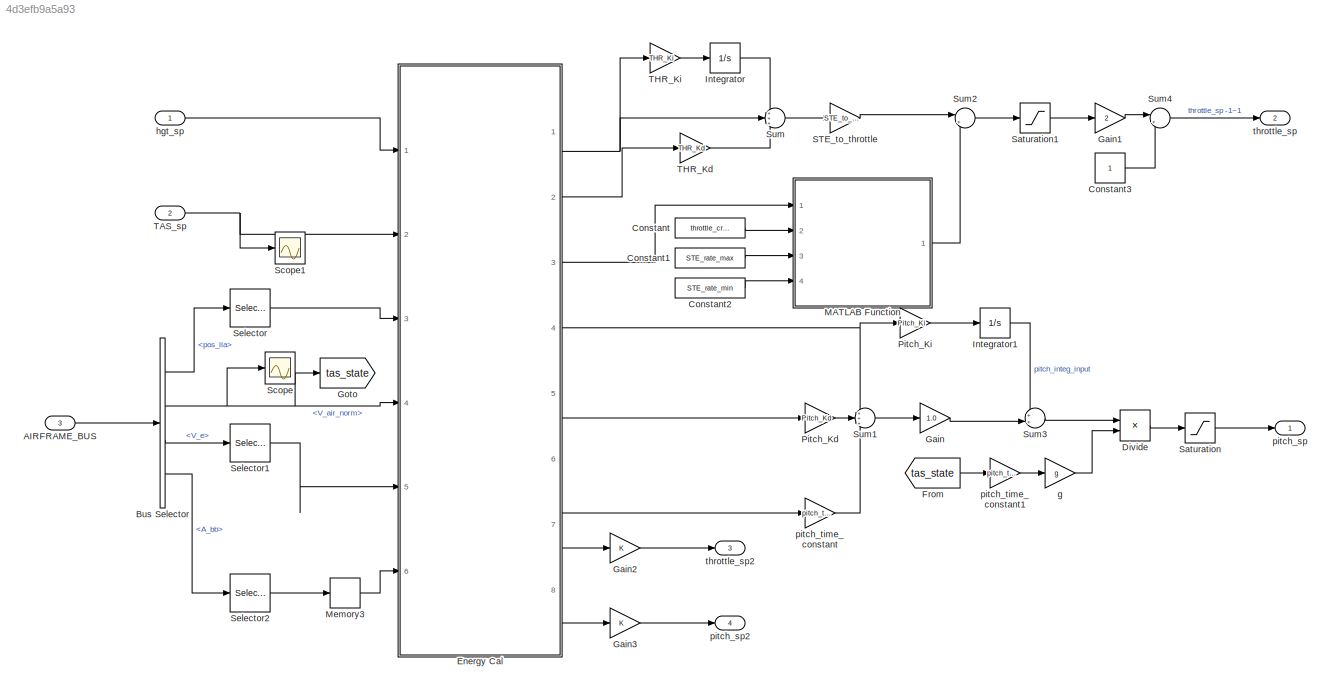
MODEL slx_4d3efb9a5a93
KIND model
CONFIG AbsTol = auto
CONFIG EnableMultiTasking = off
CONFIG FixedStep = auto
CONFIG MaxStep = auto
CONFIG MinStep = auto
CONFIG RelTol = 1e-3
CONFIG SampleTimeConstraint = Unconstrained
CONFIG Solver = FixedStepAuto
CONFIG SolverName = FixedStepAuto
CONFIG StartTime = 0.0
CONFIG StopTime = 10.0
BLOCK [Inport] AIRFRAME_BUS
  IconDisplay = Port number
  OutDataTypeStr = Bus: airframe
  Port = 3
BLOCK [BusSelector] Bus Selector
  OutputAsBus = off
  OutputSignals = pos_lla,V_air_norm,V_e,A_bb
  Ports = [1, 4]
BLOCK [Constant] Constant
  Value = throttle_cruise
BLOCK [Constant] Constant1
  Value = STE_rate_max
BLOCK [Constant] Constant2
  Value = STE_rate_min
BLOCK [Constant] Constant3
BLOCK [Product] Divide
  InputSameDT = off
  Inputs = */
  OutDataTypeStr = Inherit: Inherit via internal rule
  Ports = [2, 1]
  RndMeth = Floor
  SaturateOnIntegerOverflow = off
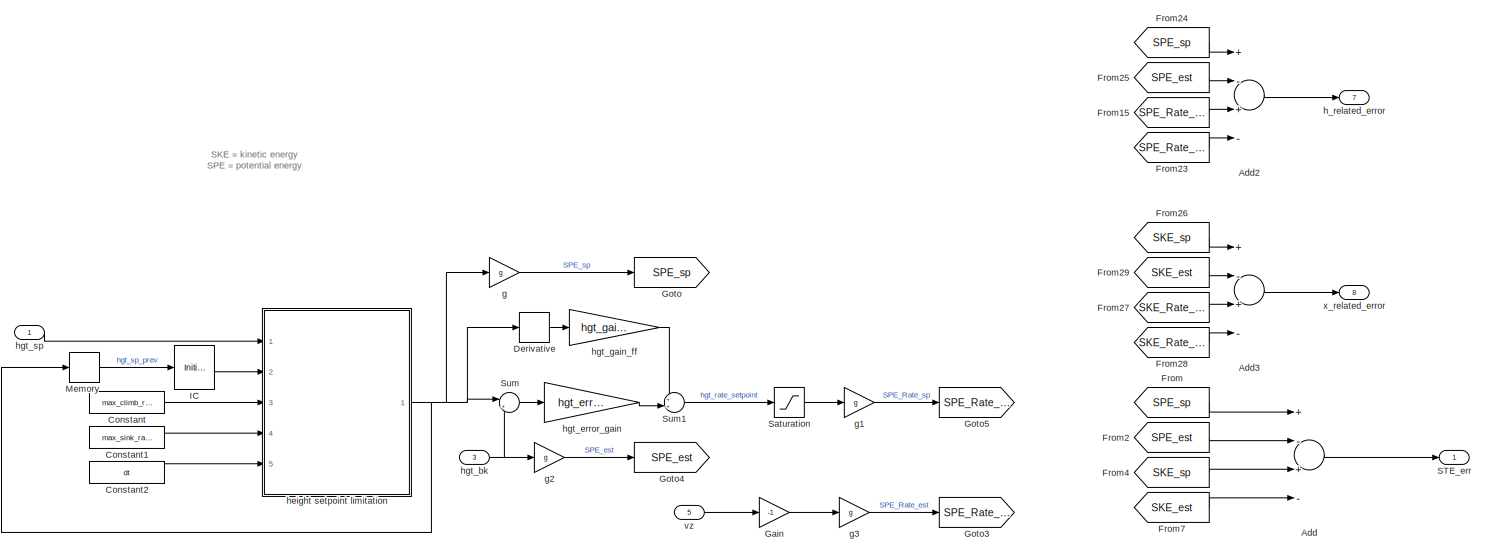
[diagram: Energy Cal - part 1/3, full width, top band]
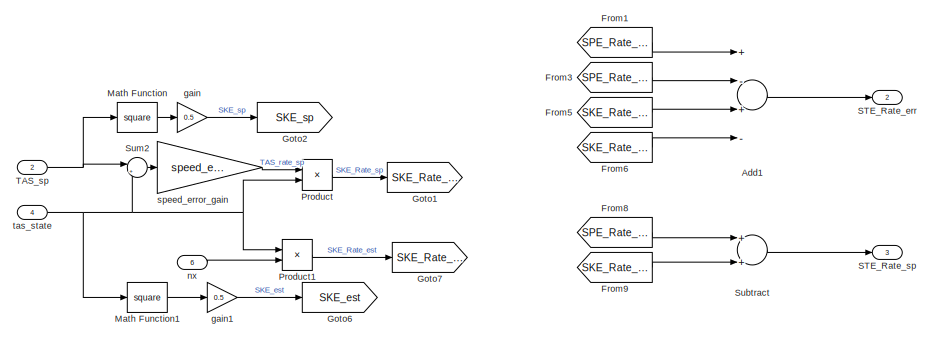
[diagram: Energy Cal - part 2/3, central region]
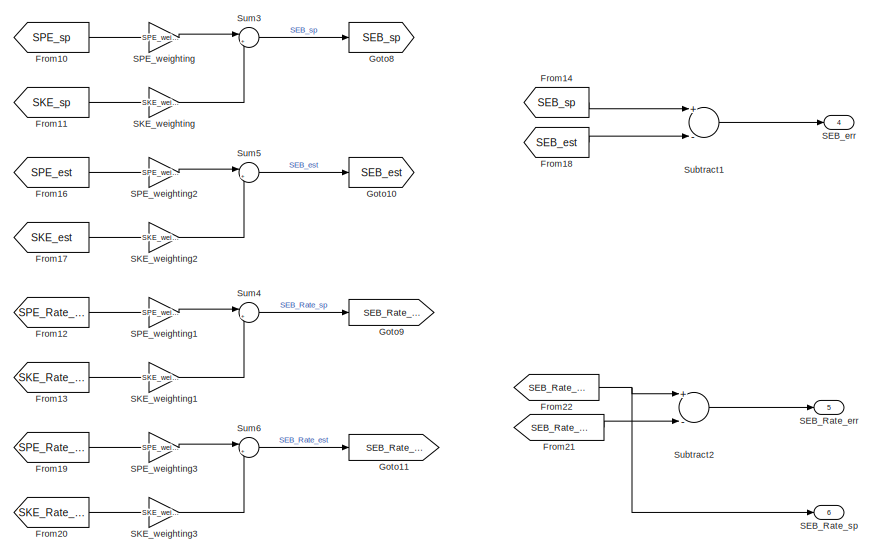
[diagram: Energy Cal - part 3/3, bottom right region]
BLOCK [SubSystem] Energy Cal
  Ports = [6, 8]
  RequestExecContextInheritance = off
  Variant = off
BLOCK [Sum] Energy Cal/Add
  InputSameDT = off
  Inputs = +-+-
  OutDataTypeStr = Inherit: Inherit via internal rule
  Ports = [4, 1]
  SaturateOnIntegerOverflow = off
BLOCK [Sum] Energy Cal/Add1
  InputSameDT = off
  Inputs = +-+-
  OutDataTypeStr = Inherit: Inherit via internal rule
  Ports = [4, 1]
  SaturateOnIntegerOverflow = off
BLOCK [Sum] Energy Cal/Add2
  InputSameDT = off
  Inputs = +-+-
  OutDataTypeStr = Inherit: Inherit via internal rule
  Ports = [4, 1]
  SaturateOnIntegerOverflow = off
BLOCK [Sum] Energy Cal/Add3
  InputSameDT = off
  Inputs = +-+-
  OutDataTypeStr = Inherit: Inherit via internal rule
  Ports = [4, 1]
  SaturateOnIntegerOverflow = off
BLOCK [Constant] Energy Cal/Constant
  Value = max_climb_rate
BLOCK [Constant] Energy Cal/Constant1
  Value = max_sink_rate
BLOCK [Constant] Energy Cal/Constant2
  Value = dt
BLOCK [Derivative] Energy Cal/Derivative
BLOCK [From] Energy Cal/From
  GotoTag = SPE_sp
BLOCK [From] Energy Cal/From1
  GotoTag = SPE_Rate_sp
BLOCK [From] Energy Cal/From10
  GotoTag = SPE_sp
BLOCK [From] Energy Cal/From11
  GotoTag = SKE_sp
BLOCK [From] Energy Cal/From12
  GotoTag = SPE_Rate_sp
BLOCK [From] Energy Cal/From13
  GotoTag = SKE_Rate_sp
BLOCK [From] Energy Cal/From14
  GotoTag = SEB_sp
BLOCK [From] Energy Cal/From15
  GotoTag = SPE_Rate_sp
BLOCK [From] Energy Cal/From16
  GotoTag = SPE_est
BLOCK [From] Energy Cal/From17
  GotoTag = SKE_est
BLOCK [From] Energy Cal/From18
  GotoTag = SEB_est
BLOCK [From] Energy Cal/From19
  GotoTag = SPE_Rate_est
BLOCK [From] Energy Cal/From2
  GotoTag = SPE_est
BLOCK [From] Energy Cal/From20
  GotoTag = SKE_Rate_est
BLOCK [From] Energy Cal/From21
  GotoTag = SEB_Rate_est
BLOCK [From] Energy Cal/From22
  GotoTag = SEB_Rate_sp
BLOCK [From] Energy Cal/From23
  GotoTag = SPE_Rate_est
BLOCK [From] Energy Cal/From24
  GotoTag = SPE_sp
BLOCK [From] Energy Cal/From25
  GotoTag = SPE_est
BLOCK [From] Energy Cal/From26
  GotoTag = SKE_sp
BLOCK [From] Energy Cal/From27
  GotoTag = SKE_Rate_sp
BLOCK [From] Energy Cal/From28
  GotoTag = SKE_Rate_est
BLOCK [From] Energy Cal/From29
  GotoTag = SKE_est
BLOCK [From] Energy Cal/From3
  GotoTag = SPE_Rate_est
BLOCK [From] Energy Cal/From4
  GotoTag = SKE_sp
BLOCK [From] Energy Cal/From5
  GotoTag = SKE_Rate_sp
BLOCK [From] Energy Cal/From6
  GotoTag = SKE_Rate_est
BLOCK [From] Energy Cal/From7
  GotoTag = SKE_est
BLOCK [From] Energy Cal/From8
  GotoTag = SPE_Rate_sp
BLOCK [From] Energy Cal/From9
  GotoTag = SKE_Rate_sp
BLOCK [Gain] Energy Cal/Gain
  Gain = -1
  OutDataTypeStr = Inherit: Inherit via internal rule
  ParamDataTypeStr = Inherit: Inherit via internal rule
  SaturateOnIntegerOverflow = off
BLOCK [Goto] Energy Cal/Goto
  GotoTag = SPE_sp
BLOCK [Goto] Energy Cal/Goto1
  GotoTag = SKE_Rate_sp
BLOCK [Goto] Energy Cal/Goto10
  GotoTag = SEB_est
BLOCK [Goto] Energy Cal/Goto11
  GotoTag = SEB_Rate_est
BLOCK [Goto] Energy Cal/Goto2
  GotoTag = SKE_sp
BLOCK [Goto] Energy Cal/Goto3
  GotoTag = SPE_Rate_est
BLOCK [Goto] Energy Cal/Goto4
  GotoTag = SPE_est
BLOCK [Goto] Energy Cal/Goto5
  GotoTag = SPE_Rate_sp
BLOCK [Goto] Energy Cal/Goto6
  GotoTag = SKE_est
BLOCK [Goto] Energy Cal/Goto7
  GotoTag = SKE_Rate_est
BLOCK [Goto] Energy Cal/Goto8
  GotoTag = SEB_sp
BLOCK [Goto] Energy Cal/Goto9
  GotoTag = SEB_Rate_sp
BLOCK [InitialCondition] Energy Cal/IC
  Value = -z0
BLOCK [Math] Energy Cal/Math Function
  Operator = square
  Ports = [1, 1]
BLOCK [Math] Energy Cal/Math Function1
  Operator = square
  Ports = [1, 1]
BLOCK [Memory] Energy Cal/Memory
BLOCK [Product] Energy Cal/Product
  InputSameDT = off
  OutDataTypeStr = Inherit: Inherit via internal rule
  Ports = [2, 1]
  RndMeth = Floor
  SaturateOnIntegerOverflow = off
BLOCK [Product] Energy Cal/Product1
  InputSameDT = off
  OutDataTypeStr = Inherit: Inherit via internal rule
  Ports = [2, 1]
  RndMeth = Floor
  SaturateOnIntegerOverflow = off
BLOCK [Outport] Energy Cal/SEB_Rate_err
  IconDisplay = Port number
  Port = 5
BLOCK [Outport] Energy Cal/SEB_Rate_sp
  IconDisplay = Port number
  Port = 6
BLOCK [Outport] Energy Cal/SEB_err
  IconDisplay = Port number
  Port = 4
BLOCK [Gain] Energy Cal/SKE_weighting
  Gain = SKE_weighting
  OutDataTypeStr = Inherit: Inherit via internal rule
  ParamDataTypeStr = Inherit: Inherit via internal rule
  SaturateOnIntegerOverflow = off
BLOCK [Gain] Energy Cal/SKE_weighting1
  Gain = SKE_weighting
  OutDataTypeStr = Inherit: Inherit via internal rule
  ParamDataTypeStr = Inherit: Inherit via internal rule
  SaturateOnIntegerOverflow = off
BLOCK [Gain] Energy Cal/SKE_weighting2
  Gain = SKE_weighting
  OutDataTypeStr = Inherit: Inherit via internal rule
  ParamDataTypeStr = Inherit: Inherit via internal rule
  SaturateOnIntegerOverflow = off
BLOCK [Gain] Energy Cal/SKE_weighting3
  Gain = SKE_weighting
  OutDataTypeStr = Inherit: Inherit via internal rule
  ParamDataTypeStr = Inherit: Inherit via internal rule
  SaturateOnIntegerOverflow = off
BLOCK [Gain] Energy Cal/SPE_weighting
  Gain = SPE_weighting
  OutDataTypeStr = Inherit: Inherit via internal rule
  ParamDataTypeStr = Inherit: Inherit via internal rule
  SaturateOnIntegerOverflow = off
BLOCK [Gain] Energy Cal/SPE_weighting1
  Gain = SPE_weighting
  OutDataTypeStr = Inherit: Inherit via internal rule
  ParamDataTypeStr = Inherit: Inherit via internal rule
  SaturateOnIntegerOverflow = off
BLOCK [Gain] Energy Cal/SPE_weighting2
  Gain = SPE_weighting
  OutDataTypeStr = Inherit: Inherit via internal rule
  ParamDataTypeStr = Inherit: Inherit via internal rule
  SaturateOnIntegerOverflow = off
BLOCK [Gain] Energy Cal/SPE_weighting3
  Gain = SPE_weighting
  OutDataTypeStr = Inherit: Inherit via internal rule
  ParamDataTypeStr = Inherit: Inherit via internal rule
  SaturateOnIntegerOverflow = off
BLOCK [Outport] Energy Cal/STE_Rate_err
  IconDisplay = Port number
  Port = 2
BLOCK [Outport] Energy Cal/STE_Rate_sp
  IconDisplay = Port number
  Port = 3
BLOCK [Outport] Energy Cal/STE_err
  IconDisplay = Port number
BLOCK [Saturate] Energy Cal/Saturation
  InputPortMap = u0
  LowerLimit = -min_sink_rate
  Ports = [1, 1]
  UpperLimit = max_climb_rate
BLOCK [Sum] Energy Cal/Subtract
  InputSameDT = off
  OutDataTypeStr = Inherit: Inherit via internal rule
  Ports = [2, 1]
  SaturateOnIntegerOverflow = off
BLOCK [Sum] Energy Cal/Subtract1
  InputSameDT = off
  Inputs = +-
  OutDataTypeStr = Inherit: Inherit via internal rule
  Ports = [2, 1]
  SaturateOnIntegerOverflow = off
BLOCK [Sum] Energy Cal/Subtract2
  InputSameDT = off
  Inputs = +-
  OutDataTypeStr = Inherit: Inherit via internal rule
  Ports = [2, 1]
  SaturateOnIntegerOverflow = off
BLOCK [Sum] Energy Cal/Sum
  IconShape = round
  InputSameDT = off
  Inputs = |+-
  OutDataTypeStr = Inherit: Inherit via internal rule
  Ports = [2, 1]
  SaturateOnIntegerOverflow = off
BLOCK [Sum] Energy Cal/Sum1
  IconShape = round
  InputSameDT = off
  Inputs = ++|
  OutDataTypeStr = Inherit: Inherit via internal rule
  Ports = [2, 1]
  SaturateOnIntegerOverflow = off
BLOCK [Sum] Energy Cal/Sum2
  IconShape = round
  InputSameDT = off
  Inputs = |+-
  OutDataTypeStr = Inherit: Inherit via internal rule
  Ports = [2, 1]
  SaturateOnIntegerOverflow = off
BLOCK [Sum] Energy Cal/Sum3
  IconShape = round
  InputSameDT = off
  Inputs = |+-
  OutDataTypeStr = Inherit: Inherit via internal rule
  Ports = [2, 1]
  SaturateOnIntegerOverflow = off
BLOCK [Sum] Energy Cal/Sum4
  IconShape = round
  InputSameDT = off
  Inputs = |+-
  OutDataTypeStr = Inherit: Inherit via internal rule
  Ports = [2, 1]
  SaturateOnIntegerOverflow = off
BLOCK [Sum] Energy Cal/Sum5
  IconShape = round
  InputSameDT = off
  Inputs = |+-
  OutDataTypeStr = Inherit: Inherit via internal rule
  Ports = [2, 1]
  SaturateOnIntegerOverflow = off
BLOCK [Sum] Energy Cal/Sum6
  IconShape = round
  InputSameDT = off
  Inputs = |+-
  OutDataTypeStr = Inherit: Inherit via internal rule
  Ports = [2, 1]
  SaturateOnIntegerOverflow = off
BLOCK [Inport] Energy Cal/TAS_sp
  IconDisplay = Port number
  Port = 2
BLOCK [Gain] Energy Cal/g
  Gain = g
  OutDataTypeStr = Inherit: Inherit via internal rule
  ParamDataTypeStr = Inherit: Inherit via internal rule
  SaturateOnIntegerOverflow = off
BLOCK [Gain] Energy Cal/g1
  Gain = g
  OutDataTypeStr = Inherit: Inherit via internal rule
  ParamDataTypeStr = Inherit: Inherit via internal rule
  SaturateOnIntegerOverflow = off
BLOCK [Gain] Energy Cal/g2
  Gain = g
  OutDataTypeStr = Inherit: Inherit via internal rule
  ParamDataTypeStr = Inherit: Inherit via internal rule
  SaturateOnIntegerOverflow = off
BLOCK [Gain] Energy Cal/g3
  Gain = g
  OutDataTypeStr = Inherit: Inherit via internal rule
  ParamDataTypeStr = Inherit: Inherit via internal rule
  SaturateOnIntegerOverflow = off
BLOCK [Gain] Energy Cal/gain
  Gain = 0.5
  OutDataTypeStr = Inherit: Inherit via internal rule
  ParamDataTypeStr = Inherit: Inherit via internal rule
  SaturateOnIntegerOverflow = off
BLOCK [Gain] Energy Cal/gain1
  Gain = 0.5
  OutDataTypeStr = Inherit: Inherit via internal rule
  ParamDataTypeStr = Inherit: Inherit via internal rule
  SaturateOnIntegerOverflow = off
BLOCK [Outport] Energy Cal/h_related_error
  IconDisplay = Port number
  Port = 7
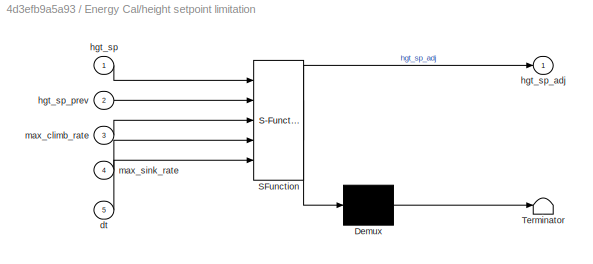
BLOCK [SubSystem] Energy Cal/height setpoint limitation
  ErrorFcn = Stateflow.Translate.translate
  PermitHierarchicalResolution = ExplicitOnly
  Ports = [5, 1]
  RequestExecContextInheritance = off
  SFBlockType = MATLAB Function
  TreatAsAtomicUnit = on
  Variant = off
BLOCK [Demux] Energy Cal/height setpoint limitation/ Demux 
  Outputs = 1
  Ports = [1, 1]
BLOCK [S-Function] Energy Cal/height setpoint limitation/ SFunction 
  EnableBusSupport = on
  FunctionName = sf_sfun
  PortCounts = [5 2]
  Ports = [5, 2]
  SFcnIsStateOwnerBlock = off
  SFunctionDeploymentMode = off
  Tag = Stateflow S-Function NewDesignTECS 27
BLOCK [Terminator] Energy Cal/height setpoint limitation/ Terminator 
BLOCK [Inport] Energy Cal/height setpoint limitation/dt
  IconDisplay = Port number
  Port = 5
BLOCK [Inport] Energy Cal/height setpoint limitation/hgt_sp
  IconDisplay = Port number
BLOCK [Outport] Energy Cal/height setpoint limitation/hgt_sp_adj
  IconDisplay = Port number
BLOCK [Inport] Energy Cal/height setpoint limitation/hgt_sp_prev
  IconDisplay = Port number
  Port = 2
BLOCK [Inport] Energy Cal/height setpoint limitation/max_climb_rate
  IconDisplay = Port number
  Port = 3
BLOCK [Inport] Energy Cal/height setpoint limitation/max_sink_rate
  IconDisplay = Port number
  Port = 4
BLOCK [Inport] Energy Cal/hgt_bk
  IconDisplay = Port number
  Port = 3
BLOCK [Gain] Energy Cal/hgt_error_gain
  Gain = hgt_error_gain
  OutDataTypeStr = Inherit: Inherit via internal rule
  ParamDataTypeStr = Inherit: Inherit via internal rule
  SaturateOnIntegerOverflow = off
BLOCK [Gain] Energy Cal/hgt_gain_ff
  Gain = hgt_gain_ff
  OutDataTypeStr = Inherit: Inherit via internal rule
  ParamDataTypeStr = Inherit: Inherit via internal rule
  SaturateOnIntegerOverflow = off
BLOCK [Inport] Energy Cal/hgt_sp
  IconDisplay = Port number
BLOCK [Inport] Energy Cal/nx
  IconDisplay = Port number
  Port = 6
BLOCK [Gain] Energy Cal/speed_error_gain
  Gain = speed_error_gain
  OutDataTypeStr = Inherit: Inherit via internal rule
  ParamDataTypeStr = Inherit: Inherit via internal rule
  SaturateOnIntegerOverflow = off
BLOCK [Inport] Energy Cal/tas_state
  IconDisplay = Port number
  Port = 4
BLOCK [Inport] Energy Cal/vz
  IconDisplay = Port number
  Port = 5
BLOCK [Outport] Energy Cal/x_related_error
  IconDisplay = Port number
  Port = 8
BLOCK [From] From
  GotoTag = tas_state
BLOCK [Gain] Gain
  Gain = 1.0
  OutDataTypeStr = Inherit: Inherit via internal rule
  ParamDataTypeStr = Inherit: Inherit via internal rule
  SaturateOnIntegerOverflow = off
BLOCK [Gain] Gain1
  Gain = 2
  OutDataTypeStr = Inherit: Inherit via internal rule
  ParamDataTypeStr = Inherit: Inherit via internal rule
  SaturateOnIntegerOverflow = off
BLOCK [Gain] Gain2
  OutDataTypeStr = Inherit: Inherit via internal rule
  ParamDataTypeStr = Inherit: Inherit via internal rule
  SaturateOnIntegerOverflow = off
BLOCK [Gain] Gain3
  OutDataTypeStr = Inherit: Inherit via internal rule
  ParamDataTypeStr = Inherit: Inherit via internal rule
  SaturateOnIntegerOverflow = off
BLOCK [Goto] Goto
  GotoTag = tas_state
BLOCK [Integrator] Integrator
  Ports = [1, 1]
BLOCK [Integrator] Integrator1
  Ports = [1, 1]
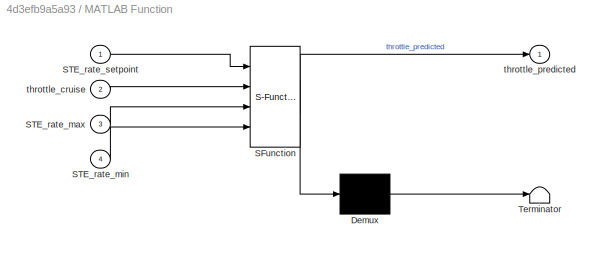
BLOCK [SubSystem] MATLAB Function
  ErrorFcn = Stateflow.Translate.translate
  PermitHierarchicalResolution = ExplicitOnly
  Ports = [4, 1]
  RequestExecContextInheritance = off
  SFBlockType = MATLAB Function
  TreatAsAtomicUnit = on
  Variant = off
BLOCK [Demux] MATLAB Function/ Demux 
  Outputs = 1
  Ports = [1, 1]
BLOCK [S-Function] MATLAB Function/ SFunction 
  EnableBusSupport = on
  FunctionName = sf_sfun
  PortCounts = [4 2]
  Ports = [4, 2]
  SFcnIsStateOwnerBlock = off
  SFunctionDeploymentMode = off
  Tag = Stateflow S-Function NewDesignTECS 28
BLOCK [Terminator] MATLAB Function/ Terminator 
BLOCK [Inport] MATLAB Function/STE_rate_max
  IconDisplay = Port number
  Port = 3
BLOCK [Inport] MATLAB Function/STE_rate_min
  IconDisplay = Port number
  Port = 4
BLOCK [Inport] MATLAB Function/STE_rate_setpoint
  IconDisplay = Port number
BLOCK [Inport] MATLAB Function/throttle_cruise
  IconDisplay = Port number
  Port = 2
BLOCK [Outport] MATLAB Function/throttle_predicted
  IconDisplay = Port number
BLOCK [Memory] Memory3
BLOCK [Gain] Pitch_Kd
  Gain = Pitch_Kd
  OutDataTypeStr = Inherit: Inherit via internal rule
  ParamDataTypeStr = Inherit: Inherit via internal rule
  SaturateOnIntegerOverflow = off
BLOCK [Gain] Pitch_Ki
  Gain = Pitch_Ki
  OutDataTypeStr = Inherit: Inherit via internal rule
  ParamDataTypeStr = Inherit: Inherit via internal rule
  SaturateOnIntegerOverflow = off
BLOCK [Gain] STE_to_throttle
  Gain = STE_to_throttle
  OutDataTypeStr = Inherit: Inherit via internal rule
  ParamDataTypeStr = Inherit: Inherit via internal rule
  SaturateOnIntegerOverflow = off
BLOCK [Saturate] Saturation
  InputPortMap = u0
  LowerLimit = -pitch_sp_limit
  Ports = [1, 1]
  UpperLimit = pitch_sp_limit
BLOCK [Saturate] Saturation1
  InputPortMap = u0
  LowerLimit = 0
  Ports = [1, 1]
  UpperLimit = 1
BLOCK [Scope] Scope
  NumInputPorts = 1
  Ports = [1]
  ScopeSpecificationString = Simulink.scopes.TimeScopeBlockCfg('CurrentConfiguration', extmgr.ConfigurationSet(extmgr.Configuration('Core','General UI',true),extmgr.Configuration('Core','Source UI',true),extmgr.Configuration('Sources','WiredSimulink',true,'DataLoggingVariableName','ScopeData1'),extmgr.Configuration('Visuals','Time Domain',true,'SerializedDisplays',{struct('MinYLimReal','24.47454','MaxYLimReal','25.05838','YLa...<+1405ch>
BLOCK [Scope] Scope1
  NumInputPorts = 1
  Ports = [1]
  ScopeSpecificationString = Simulink.scopes.TimeScopeBlockCfg('CurrentConfiguration', extmgr.ConfigurationSet(extmgr.Configuration('Core','General UI',true),extmgr.Configuration('Core','Source UI',true),extmgr.Configuration('Sources','WiredSimulink',true),extmgr.Configuration('Visuals','Time Domain',true,'SerializedDisplays',{struct('MinYLimReal','15.00000','MaxYLimReal','35.00000','YLabelReal','','MinYLimMag','15.00000','Ma...<+1361ch>
BLOCK [Selector] Selector
  IndexOptions = Index vector (dialog)
  Indices = 3
  InputPortWidth = 3
  OutputSizes = 1
  Ports = [1, 1]
BLOCK [Selector] Selector1
  IndexOptions = Index vector (dialog)
  Indices = 3
  InputPortWidth = 3
  OutputSizes = 1
  Ports = [1, 1]
BLOCK [Selector] Selector2
  IndexOptions = Index vector (dialog)
  Indices = 1
  InputPortWidth = 3
  OutputSizes = 1
  Ports = [1, 1]
BLOCK [Sum] Sum
  IconShape = round
  InputSameDT = off
  Inputs = +++
  OutDataTypeStr = Inherit: Inherit via internal rule
  Ports = [3, 1]
  SaturateOnIntegerOverflow = off
BLOCK [Sum] Sum1
  IconShape = round
  InputSameDT = off
  Inputs = +++
  OutDataTypeStr = Inherit: Inherit via internal rule
  Ports = [3, 1]
  SaturateOnIntegerOverflow = off
BLOCK [Sum] Sum2
  IconShape = round
  InputSameDT = off
  Inputs = |++
  OutDataTypeStr = Inherit: Inherit via internal rule
  Ports = [2, 1]
  SaturateOnIntegerOverflow = off
BLOCK [Sum] Sum3
  IconShape = round
  InputSameDT = off
  Inputs = ++|
  OutDataTypeStr = Inherit: Inherit via internal rule
  Ports = [2, 1]
  SaturateOnIntegerOverflow = off
BLOCK [Sum] Sum4
  IconShape = round
  InputSameDT = off
  Inputs = |+-
  OutDataTypeStr = Inherit: Inherit via internal rule
  Ports = [2, 1]
  SaturateOnIntegerOverflow = off
BLOCK [Inport] TAS_sp
  IconDisplay = Port number
  Port = 2
BLOCK [Gain] THR_Kd
  Gain = THR_Kd
  OutDataTypeStr = Inherit: Inherit via internal rule
  ParamDataTypeStr = Inherit: Inherit via internal rule
  SaturateOnIntegerOverflow = off
BLOCK [Gain] THR_Ki
  Gain = THR_Ki
  OutDataTypeStr = Inherit: Inherit via internal rule
  ParamDataTypeStr = Inherit: Inherit via internal rule
  SaturateOnIntegerOverflow = off
BLOCK [Gain] g
  Gain = g
  OutDataTypeStr = Inherit: Inherit via internal rule
  ParamDataTypeStr = Inherit: Inherit via internal rule
  SaturateOnIntegerOverflow = off
BLOCK [Inport] hgt_sp
  IconDisplay = Port number
BLOCK [Outport] pitch_sp
  IconDisplay = Port number
BLOCK [Outport] pitch_sp2
  IconDisplay = Port number
  Port = 4
BLOCK [Gain] pitch_time_constant
  Gain = pitch_time_constant
  OutDataTypeStr = Inherit: Inherit via internal rule
  ParamDataTypeStr = Inherit: Inherit via internal rule
  SaturateOnIntegerOverflow = off
BLOCK [Gain] pitch_time_constant1
  Gain = pitch_time_constant
  OutDataTypeStr = Inherit: Inherit via internal rule
  ParamDataTypeStr = Inherit: Inherit via internal rule
  SaturateOnIntegerOverflow = off
BLOCK [Outport] throttle_sp
  IconDisplay = Port number
  OutMax = 1
  OutMin = 0
  Port = 2
  PortDimensions = 1
  SignalType = real
  VarSizeSig = No
BLOCK [Outport] throttle_sp2
  IconDisplay = Port number
  Port = 3
ANNOTATION Energy Cal: SKE = kinetic energy SPE = potential energy
LINE AIRFRAME_BUS:1 -> Bus Selector:1
LINE Bus Selector:1 -> Selector:1
NET Bus Selector:2 -> Energy Cal:4, Goto:1, Scope:1
LINE Bus Selector:3 -> Selector1:1
LINE Bus Selector:4 -> Selector2:1
LINE Constant1:1 -> MATLAB Function:3
LINE Constant2:1 -> MATLAB Function:4
LINE Constant3:1 -> Sum4:2
LINE Constant:1 -> MATLAB Function:2
LINE Divide:1 -> Saturation:1
LINE Energy Cal/Add1:1 -> Energy Cal/STE_Rate_err:1
LINE Energy Cal/Add2:1 -> Energy Cal/h_related_error:1
LINE Energy Cal/Add3:1 -> Energy Cal/x_related_error:1
LINE Energy Cal/Add:1 -> Energy Cal/STE_err:1
LINE Energy Cal/Constant1:1 -> Energy Cal/height setpoint limitation:4
LINE Energy Cal/Constant2:1 -> Energy Cal/height setpoint limitation:5
LINE Energy Cal/Constant:1 -> Energy Cal/height setpoint limitation:3
LINE Energy Cal/Derivative:1 -> Energy Cal/hgt_gain_ff:1
LINE Energy Cal/From10:1 -> Energy Cal/SPE_weighting:1
LINE Energy Cal/From11:1 -> Energy Cal/SKE_weighting:1
LINE Energy Cal/From12:1 -> Energy Cal/SPE_weighting1:1
LINE Energy Cal/From13:1 -> Energy Cal/SKE_weighting1:1
LINE Energy Cal/From14:1 -> Energy Cal/Subtract1:1
LINE Energy Cal/From15:1 -> Energy Cal/Add2:3
LINE Energy Cal/From16:1 -> Energy Cal/SPE_weighting2:1
LINE Energy Cal/From17:1 -> Energy Cal/SKE_weighting2:1
LINE Energy Cal/From18:1 -> Energy Cal/Subtract1:2
LINE Energy Cal/From19:1 -> Energy Cal/SPE_weighting3:1
LINE Energy Cal/From1:1 -> Energy Cal/Add1:1
LINE Energy Cal/From20:1 -> Energy Cal/SKE_weighting3:1
LINE Energy Cal/From21:1 -> Energy Cal/Subtract2:2
NET Energy Cal/From22:1 -> Energy Cal/SEB_Rate_sp:1, Energy Cal/Subtract2:1
LINE Energy Cal/From23:1 -> Energy Cal/Add2:4
LINE Energy Cal/From24:1 -> Energy Cal/Add2:1
LINE Energy Cal/From25:1 -> Energy Cal/Add2:2
LINE Energy Cal/From26:1 -> Energy Cal/Add3:1
LINE Energy Cal/From27:1 -> Energy Cal/Add3:3
LINE Energy Cal/From28:1 -> Energy Cal/Add3:4
LINE Energy Cal/From29:1 -> Energy Cal/Add3:2
LINE Energy Cal/From2:1 -> Energy Cal/Add:2
LINE Energy Cal/From3:1 -> Energy Cal/Add1:2
LINE Energy Cal/From4:1 -> Energy Cal/Add:3
LINE Energy Cal/From5:1 -> Energy Cal/Add1:3
LINE Energy Cal/From6:1 -> Energy Cal/Add1:4
LINE Energy Cal/From7:1 -> Energy Cal/Add:4
LINE Energy Cal/From8:1 -> Energy Cal/Subtract:1
LINE Energy Cal/From9:1 -> Energy Cal/Subtract:2
LINE Energy Cal/From:1 -> Energy Cal/Add:1
LINE Energy Cal/Gain:1 -> Energy Cal/g3:1
LINE Energy Cal/IC:1 -> Energy Cal/height setpoint limitation:2
LINE Energy Cal/Math Function1:1 -> Energy Cal/gain1:1
LINE Energy Cal/Math Function:1 -> Energy Cal/gain:1
LINE Energy Cal/Memory:1 -> Energy Cal/IC:1
LINE Energy Cal/Product1:1 -> Energy Cal/Goto7:1
LINE Energy Cal/Product:1 -> Energy Cal/Goto1:1
LINE Energy Cal/SKE_weighting1:1 -> Energy Cal/Sum4:2
LINE Energy Cal/SKE_weighting2:1 -> Energy Cal/Sum5:2
LINE Energy Cal/SKE_weighting3:1 -> Energy Cal/Sum6:2
LINE Energy Cal/SKE_weighting:1 -> Energy Cal/Sum3:2
LINE Energy Cal/SPE_weighting1:1 -> Energy Cal/Sum4:1
LINE Energy Cal/SPE_weighting2:1 -> Energy Cal/Sum5:1
LINE Energy Cal/SPE_weighting3:1 -> Energy Cal/Sum6:1
LINE Energy Cal/SPE_weighting:1 -> Energy Cal/Sum3:1
LINE Energy Cal/Saturation:1 -> Energy Cal/g1:1
LINE Energy Cal/Subtract1:1 -> Energy Cal/SEB_err:1
LINE Energy Cal/Subtract2:1 -> Energy Cal/SEB_Rate_err:1
LINE Energy Cal/Subtract:1 -> Energy Cal/STE_Rate_sp:1
LINE Energy Cal/Sum1:1 -> Energy Cal/Saturation:1
LINE Energy Cal/Sum2:1 -> Energy Cal/speed_error_gain:1
LINE Energy Cal/Sum3:1 -> Energy Cal/Goto8:1
LINE Energy Cal/Sum4:1 -> Energy Cal/Goto9:1
LINE Energy Cal/Sum5:1 -> Energy Cal/Goto10:1
LINE Energy Cal/Sum6:1 -> Energy Cal/Goto11:1
LINE Energy Cal/Sum:1 -> Energy Cal/hgt_error_gain:1
NET Energy Cal/TAS_sp:1 -> Energy Cal/Math Function:1, Energy Cal/Sum2:1
LINE Energy Cal/g1:1 -> Energy Cal/Goto5:1
LINE Energy Cal/g2:1 -> Energy Cal/Goto4:1
LINE Energy Cal/g3:1 -> Energy Cal/Goto3:1
LINE Energy Cal/g:1 -> Energy Cal/Goto:1
LINE Energy Cal/gain1:1 -> Energy Cal/Goto6:1
LINE Energy Cal/gain:1 -> Energy Cal/Goto2:1
NET Energy Cal/height setpoint limitation:1 -> Energy Cal/Derivative:1, Energy Cal/Memory:1, Energy Cal/Sum:1, Energy Cal/g:1
NET Energy Cal/hgt_bk:1 -> Energy Cal/Sum:2, Energy Cal/g2:1
LINE Energy Cal/hgt_error_gain:1 -> Energy Cal/Sum1:2
LINE Energy Cal/hgt_gain_ff:1 -> Energy Cal/Sum1:1
LINE Energy Cal/hgt_sp:1 -> Energy Cal/height setpoint limitation:1
LINE Energy Cal/nx:1 -> Energy Cal/Product1:2
LINE Energy Cal/speed_error_gain:1 -> Energy Cal/Product:1
NET Energy Cal/tas_state:1 -> Energy Cal/Math Function1:1, Energy Cal/Product1:1, Energy Cal/Product:2, Energy Cal/Sum2:2
LINE Energy Cal/vz:1 -> Energy Cal/Gain:1
NET Energy Cal:1 -> Sum:2, THR_Ki:1
LINE Energy Cal:2 -> THR_Kd:1
LINE Energy Cal:3 -> MATLAB Function:1
NET Energy Cal:4 -> Pitch_Ki:1, Sum1:1
LINE Energy Cal:5 -> Pitch_Kd:1
LINE Energy Cal:6 -> pitch_time_constant:1
LINE Energy Cal:7 -> Gain2:1
LINE Energy Cal:8 -> Gain3:1
LINE From:1 -> pitch_time_constant1:1
LINE Gain1:1 -> Sum4:1
LINE Gain2:1 -> throttle_sp2:1
LINE Gain3:1 -> pitch_sp2:1
LINE Gain:1 -> Sum3:2
LINE Integrator1:1 -> Sum3:1
LINE Integrator:1 -> Sum:1
LINE MATLAB Function:1 -> Sum2:2
LINE Memory3:1 -> Energy Cal:6
LINE Pitch_Kd:1 -> Sum1:2
LINE Pitch_Ki:1 -> Integrator1:1
LINE STE_to_throttle:1 -> Sum2:1
LINE Saturation1:1 -> Gain1:1
LINE Saturation:1 -> pitch_sp:1
LINE Selector1:1 -> Energy Cal:5
LINE Selector2:1 -> Memory3:1
LINE Selector:1 -> Energy Cal:3
LINE Sum1:1 -> Gain:1
LINE Sum2:1 -> Saturation1:1
LINE Sum3:1 -> Divide:1
LINE Sum4:1 -> throttle_sp:1
LINE Sum:1 -> STE_to_throttle:1
NET TAS_sp:1 -> Energy Cal:2, Scope1:1
LINE THR_Kd:1 -> Sum:3
LINE THR_Ki:1 -> Integrator:1
LINE g:1 -> Divide:2
LINE hgt_sp:1 -> Energy Cal:1
LINE pitch_time_constant1:1 -> g:1
LINE pitch_time_constant:1 -> Sum1:3
note: NET lines group one-source signal fan-out (src -> all destinations, sorted); 1:1 wires keep LINE
CHART Energy Cal/height setpoint limitation states=1 transitions=1
  STATE_LABEL 'eML_blk_kernel()'
  STATE_LABEL 'SCRIPT:\n% limit the maximum height setpoint from current height depends on maximum\n% climb rate, sind rate and dt.\nfunction hgt_sp_adj = fcn(hgt_sp,hgt_sp_prev,max_climb_rate,max_sink_rate,dt)\nif ((hgt_sp - hgt_sp_prev) > (max_climb_rate * dt)) \n\thgt_sp_adj = hgt_sp_prev + max_climb_rate * dt;\nelseif ((hgt_sp - hgt_sp_prev) < (-max_sink_rate * dt))\n\thgt_sp_adj = hgt_sp_prev - max_sink_rate * dt;\ne...<+36ch>'
CHART MATLAB Function states=1 transitions=1
  STATE_LABEL 'eML_blk_kernel()'
  STATE_LABEL 'SCRIPT:\nfunction throttle_predicted = fcn(STE_rate_setpoint,throttle_cruise,STE_rate_max,STE_rate_min)\nif (STE_rate_setpoint >= 0) \n\tthrottle_predicted = throttle_cruise + STE_rate_setpoint / STE_rate_max * (1.0 - throttle_cruise);\n\nelse\n    throttle_predicted = throttle_cruise + STE_rate_setpoint / STE_rate_min * (0.0 - throttle_cruise);\nend\n\n'
